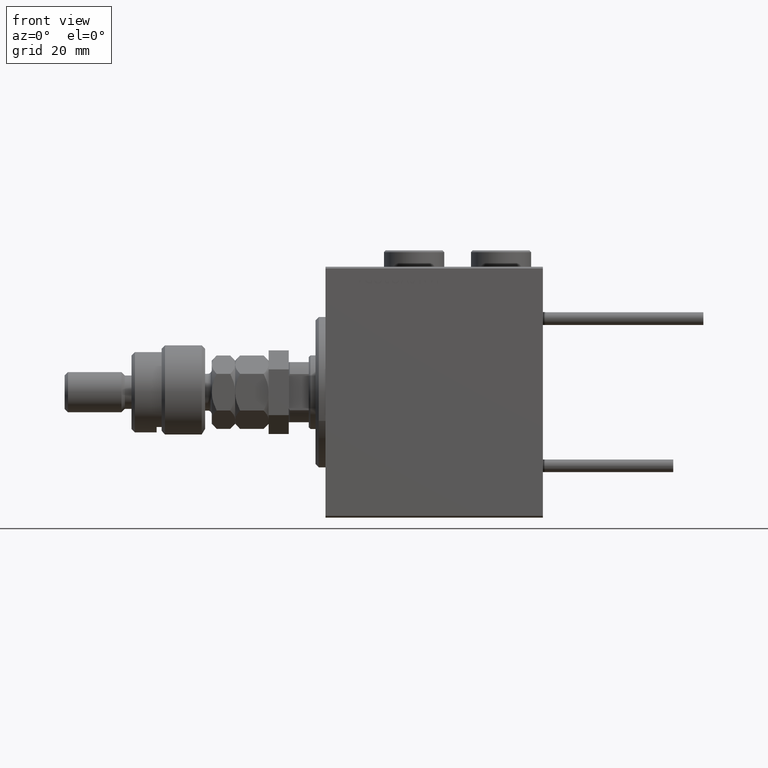
[diagram: clean part render]
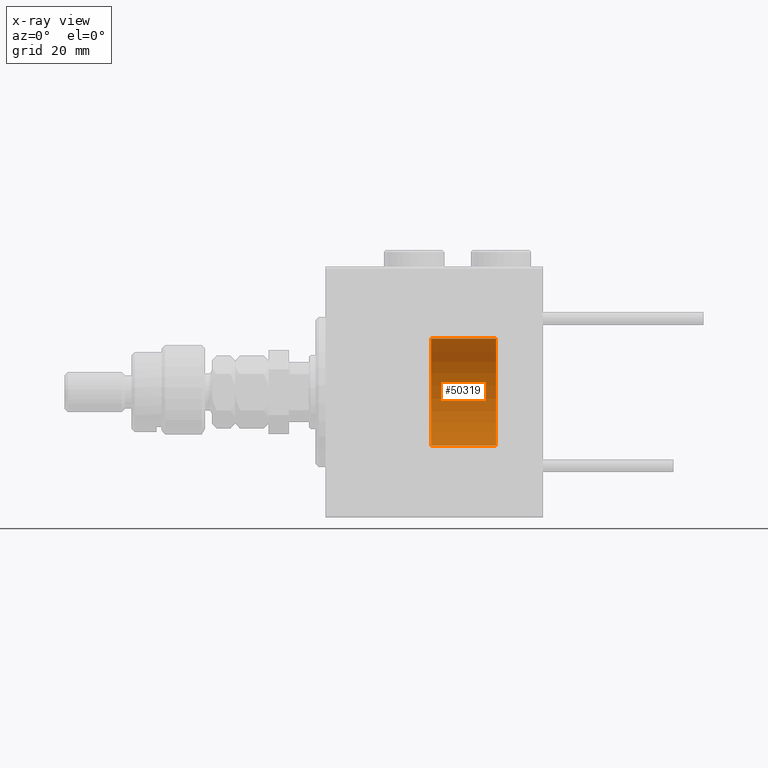
[diagram: x-ray — body ghosted, one internal face saturated and labeled with its STEP entity id]
A machine part, front view, then the same camera in x-ray: the body is ghosted and one INTERNAL B-rep face — a face not visible from any outside direction — is saturated and labeled: STEP entity #50319.
In plain terms, the highlighted cylindrical surface (partial cylindrical patch) has radius 16 mm, axis along (1, -0, -0).
Its self-contained STEP definition (entity closure, byte-faithful):
#481 = AXIS2_PLACEMENT_3D ( 'NONE', #16796, #12954, #29708 ) ;
#5090 = EDGE_CURVE ( 'NONE', #11817, #10067, #13615, .T. ) ;
#6939 = ORIENTED_EDGE ( 'NONE', *, *, #37624, .T. ) ;
#8288 = VERTEX_POINT ( 'NONE', #40798 ) ;
#8582 = CARTESIAN_POINT ( 'NONE',  ( -16.00000000000000000, 0.000000000000000000, 19.39999999999999858 ) ) ;
#10067 = VERTEX_POINT ( 'NONE', #12327 ) ;
#10234 = CARTESIAN_POINT ( 'NONE',  ( 0.000000000000000000, 0.000000000000000000, 19.39999999999999858 ) ) ;
#10949 = ORIENTED_EDGE ( 'NONE', *, *, #50012, .F. ) ;
#11817 = VERTEX_POINT ( 'NONE', #42031 ) ;
#12327 = CARTESIAN_POINT ( 'NONE',  ( 16.00000000000000000, 1.959434878635765131E-15, 0.000000000000000000 ) ) ;
#12954 = DIRECTION ( 'NONE',  ( 0.000000000000000000, 0.000000000000000000, 1.000000000000000000 ) ) ;
#13517 = CYLINDRICAL_SURFACE ( 'NONE', #27972, 16.00000000000000000 ) ;
#13615 = LINE ( 'NONE', #30908, #18063 ) ;
#13795 = DIRECTION ( 'NONE',  ( -0.000000000000000000, -0.000000000000000000, -1.000000000000000000 ) ) ;
#14811 = VECTOR ( 'NONE', #22037, 1000.000000000000000 ) ;
#16591 = AXIS2_PLACEMENT_3D ( 'NONE', #46323, #42210, #21368 ) ;
#16796 = CARTESIAN_POINT ( 'NONE',  ( 0.000000000000000000, 0.000000000000000000, 0.000000000000000000 ) ) ;
#18063 = VECTOR ( 'NONE', #44056, 1000.000000000000000 ) ;
#18701 = ORIENTED_EDGE ( 'NONE', *, *, #5090, .T. ) ;
#20881 = EDGE_LOOP ( 'NONE', ( #10949, #18701, #6939, #50229 ) ) ;
#21368 = DIRECTION ( 'NONE',  ( 1.000000000000000000, 0.000000000000000000, 0.000000000000000000 ) ) ;
#22037 = DIRECTION ( 'NONE',  ( -0.000000000000000000, -0.000000000000000000, -1.000000000000000000 ) ) ;
#26433 = LINE ( 'NONE', #38761, #14811 ) ;
#26783 = CIRCLE ( 'NONE', #481, 16.00000000000000000 ) ;
#26981 = FACE_OUTER_BOUND ( 'NONE', #20881, .T. ) ;
#27972 = AXIS2_PLACEMENT_3D ( 'NONE', #10234, #13795, #34925 ) ;
#29708 = DIRECTION ( 'NONE',  ( 1.000000000000000000, 0.000000000000000000, 0.000000000000000000 ) ) ;
#30908 = CARTESIAN_POINT ( 'NONE',  ( 16.00000000000000000, 1.959434878635765131E-15, 19.39999999999999858 ) ) ;
#34925 = DIRECTION ( 'NONE',  ( -1.000000000000000000, 0.000000000000000000, 0.000000000000000000 ) ) ;
#37624 = EDGE_CURVE ( 'NONE', #10067, #8288, #26783, .T. ) ;
#38761 = CARTESIAN_POINT ( 'NONE',  ( -16.00000000000000000, 0.000000000000000000, 19.39999999999999858 ) ) ;
#40798 = CARTESIAN_POINT ( 'NONE',  ( -16.00000000000000000, 0.000000000000000000, 0.000000000000000000 ) ) ;
#42031 = CARTESIAN_POINT ( 'NONE',  ( 16.00000000000000000, 1.959434878635765131E-15, 19.39999999999999858 ) ) ;
#42210 = DIRECTION ( 'NONE',  ( 0.000000000000000000, 0.000000000000000000, 1.000000000000000000 ) ) ;
#42877 = CIRCLE ( 'NONE', #16591, 16.00000000000000000 ) ;
#44056 = DIRECTION ( 'NONE',  ( -0.000000000000000000, -0.000000000000000000, -1.000000000000000000 ) ) ;
#44877 = EDGE_CURVE ( 'NONE', #46962, #8288, #26433, .T. ) ;
#46323 = CARTESIAN_POINT ( 'NONE',  ( 0.000000000000000000, 0.000000000000000000, 19.39999999999999858 ) ) ;
#46962 = VERTEX_POINT ( 'NONE', #8582 ) ;
#50012 = EDGE_CURVE ( 'NONE', #11817, #46962, #42877, .T. ) ;
#50229 = ORIENTED_EDGE ( 'NONE', *, *, #44877, .F. ) ;
#50319 = ADVANCED_FACE ( 'NONE', ( #26981 ), #13517, .T. ) ;